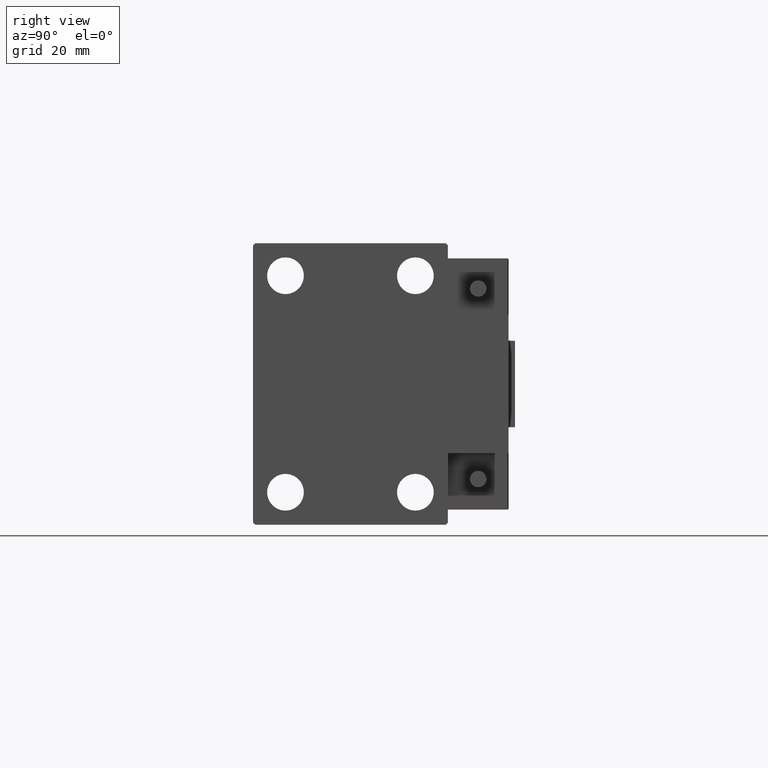
[diagram: clean part render]
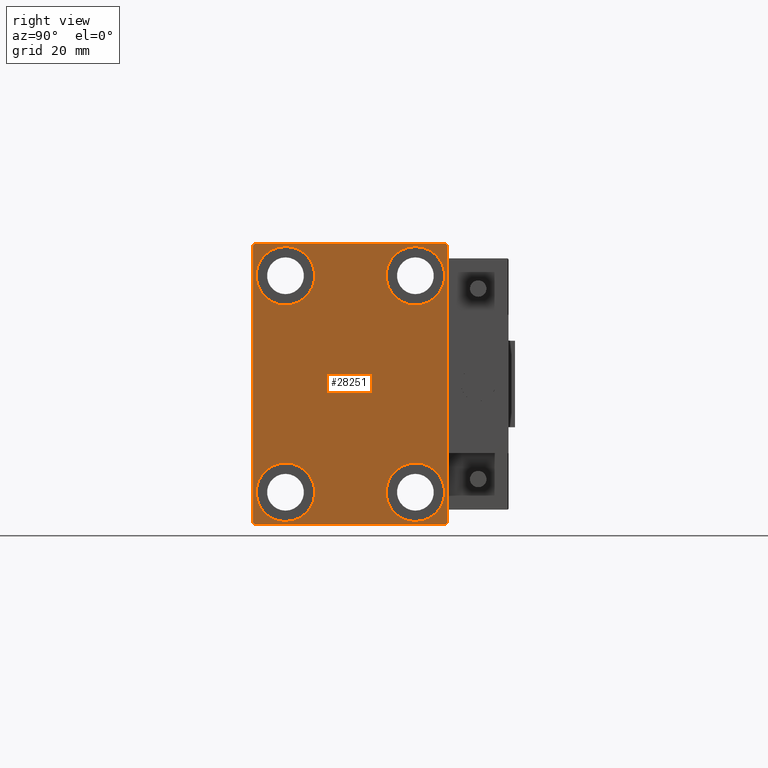
[diagram: same view with one face highlighted and labeled with its STEP entity id]
A machine part, right view. The second image highlights one B-rep face of the part: STEP entity #28251.
In plain terms, the highlighted planar face has unit normal (1, 0, 0).
Its self-contained STEP definition (entity closure, byte-faithful):
#287 = CARTESIAN_POINT ( 'NONE',  ( 70.00000000000000000, 14.99999999999999645, -18.25000000000000355 ) ) ;
#549 = EDGE_LOOP ( 'NONE', ( #13953, #28505, #42384, #42921, #36866, #13295, #45395, #9651 ) ) ;
#704 = CARTESIAN_POINT ( 'NONE',  ( 70.00000000000000000, 22.49999999999999289, 31.99999999999999289 ) ) ;
#861 = VECTOR ( 'NONE', #25754, 1000.000000000000000 ) ;
#1288 = ORIENTED_EDGE ( 'NONE', *, *, #1877, .T. ) ;
#1877 = EDGE_CURVE ( 'NONE', #3171, #17573, #22066, .T. ) ;
#2309 = ORIENTED_EDGE ( 'NONE', *, *, #14865, .T. ) ;
#2425 = DIRECTION ( 'NONE',  ( 0.000000000000000000, -1.000000000000000000, -1.541976423090495387E-16 ) ) ;
#2581 = DIRECTION ( 'NONE',  ( 0.000000000000000000, 0.000000000000000000, 1.000000000000000000 ) ) ;
#2743 = EDGE_CURVE ( 'NONE', #13294, #39529, #37813, .T. ) ;
#3171 = VERTEX_POINT ( 'NONE', #43037 ) ;
#3234 = ORIENTED_EDGE ( 'NONE', *, *, #28754, .T. ) ;
#5001 = EDGE_CURVE ( 'NONE', #10441, #23981, #8164, .T. ) ;
#5024 = EDGE_CURVE ( 'NONE', #49886, #34389, #45066, .T. ) ;
#5616 = DIRECTION ( 'NONE',  ( 0.000000000000000000, 0.000000000000000000, -1.000000000000000000 ) ) ;
#7177 = DIRECTION ( 'NONE',  ( 1.000000000000000000, 0.000000000000000000, 0.000000000000000000 ) ) ;
#7421 = FACE_BOUND ( 'NONE', #9993, .T. ) ;
#7881 = CARTESIAN_POINT ( 'NONE',  ( 70.00000000000000000, -15.00000000000000355, -25.00000000000000000 ) ) ;
#7916 = DIRECTION ( 'NONE',  ( 0.000000000000000000, 0.000000000000000000, -1.000000000000000000 ) ) ;
#8164 = CIRCLE ( 'NONE', #47159, 6.749999999999999112 ) ;
#8847 = AXIS2_PLACEMENT_3D ( 'NONE', #37991, #7177, #7916 ) ;
#9054 = VECTOR ( 'NONE', #40238, 1000.000000000000000 ) ;
#9240 = CARTESIAN_POINT ( 'NONE',  ( 70.00000000000000000, -15.00000000000000355, -31.75000000000000000 ) ) ;
#9631 = CARTESIAN_POINT ( 'NONE',  ( 70.00000000000000000, -22.50000000000000711, -32.50000000000000711 ) ) ;
#9651 = ORIENTED_EDGE ( 'NONE', *, *, #28896, .T. ) ;
#9993 = EDGE_LOOP ( 'NONE', ( #15526, #15160 ) ) ;
#10148 = AXIS2_PLACEMENT_3D ( 'NONE', #7881, #26989, #19108 ) ;
#10441 = VERTEX_POINT ( 'NONE', #14802 ) ;
#10825 = CARTESIAN_POINT ( 'NONE',  ( 70.00000000000000000, -14.99999999999999645, 31.75000000000000000 ) ) ;
#11805 = CARTESIAN_POINT ( 'NONE',  ( 70.00000000000000000, 14.99999999999999645, -25.00000000000000000 ) ) ;
#11924 = VERTEX_POINT ( 'NONE', #29906 ) ;
#12004 = DIRECTION ( 'NONE',  ( -1.000000000000000000, -0.000000000000000000, -0.000000000000000000 ) ) ;
#12386 = DIRECTION ( 'NONE',  ( 0.000000000000000000, 0.000000000000000000, 1.000000000000000000 ) ) ;
#13294 = VERTEX_POINT ( 'NONE', #49559 ) ;
#13295 = ORIENTED_EDGE ( 'NONE', *, *, #39082, .T. ) ;
#13442 = CARTESIAN_POINT ( 'NONE',  ( 70.00000000000000000, -22.50000000000000711, -32.00000000000000711 ) ) ;
#13953 = ORIENTED_EDGE ( 'NONE', *, *, #2743, .T. ) ;
#13973 = EDGE_LOOP ( 'NONE', ( #28180, #3234 ) ) ;
#14519 = VERTEX_POINT ( 'NONE', #9240 ) ;
#14596 = CARTESIAN_POINT ( 'NONE',  ( 70.00000000000000000, -15.00000000000000355, -25.00000000000000000 ) ) ;
#14802 = CARTESIAN_POINT ( 'NONE',  ( 70.00000000000000000, 15.00000000000000355, 18.25000000000000355 ) ) ;
#14865 = EDGE_CURVE ( 'NONE', #17573, #3171, #20609, .T. ) ;
#15160 = ORIENTED_EDGE ( 'NONE', *, *, #17419, .T. ) ;
#15212 = EDGE_CURVE ( 'NONE', #14519, #29630, #16645, .T. ) ;
#15512 = CIRCLE ( 'NONE', #39981, 6.749999999999999112 ) ;
#15526 = ORIENTED_EDGE ( 'NONE', *, *, #15212, .T. ) ;
#15586 = DIRECTION ( 'NONE',  ( 0.000000000000000000, 0.000000000000000000, 1.000000000000000000 ) ) ;
#15627 = DIRECTION ( 'NONE',  ( -1.000000000000000000, -0.000000000000000000, -0.000000000000000000 ) ) ;
#15749 = EDGE_LOOP ( 'NONE', ( #31566, #35513 ) ) ;
#15767 = DIRECTION ( 'NONE',  ( -0.000000000000000000, 0.7071067811865376918, 0.7071067811865573427 ) ) ;
#15900 = DIRECTION ( 'NONE',  ( 0.000000000000000000, 0.000000000000000000, 1.000000000000000000 ) ) ;
#16060 = CARTESIAN_POINT ( 'NONE',  ( 70.00000000000000000, -14.99999999999999645, 18.25000000000000355 ) ) ;
#16371 = EDGE_CURVE ( 'NONE', #19222, #49886, #37695, .T. ) ;
#16645 = CIRCLE ( 'NONE', #10148, 6.749999999999999112 ) ;
#17419 = EDGE_CURVE ( 'NONE', #29630, #14519, #18265, .T. ) ;
#17544 = DIRECTION ( 'NONE',  ( 0.000000000000000000, 1.000000000000000000, 0.000000000000000000 ) ) ;
#17573 = VERTEX_POINT ( 'NONE', #287 ) ;
#18265 = CIRCLE ( 'NONE', #19887, 6.749999999999999112 ) ;
#18871 = CARTESIAN_POINT ( 'NONE',  ( 70.00000000000000000, 15.00000000000000355, 25.00000000000000000 ) ) ;
#19108 = DIRECTION ( 'NONE',  ( 0.000000000000000000, 0.000000000000000000, 1.000000000000000000 ) ) ;
#19222 = VERTEX_POINT ( 'NONE', #29128 ) ;
#19326 = EDGE_LOOP ( 'NONE', ( #1288, #2309 ) ) ;
#19887 = AXIS2_PLACEMENT_3D ( 'NONE', #14596, #22736, #45604 ) ;
#20609 = CIRCLE ( 'NONE', #35244, 6.749999999999999112 ) ;
#22066 = CIRCLE ( 'NONE', #46384, 6.749999999999999112 ) ;
#22105 = CARTESIAN_POINT ( 'NONE',  ( 70.00000000000000000, -14.99999999999999645, 25.00000000000000000 ) ) ;
#22162 = CARTESIAN_POINT ( 'NONE',  ( 70.00000000000000000, -27.25000000000000000, 27.25000000000000000 ) ) ;
#22736 = DIRECTION ( 'NONE',  ( -1.000000000000000000, -0.000000000000000000, -0.000000000000000000 ) ) ;
#23232 = CARTESIAN_POINT ( 'NONE',  ( 70.00000000000000000, 14.99999999999999645, -25.00000000000000000 ) ) ;
#23785 = DIRECTION ( 'NONE',  ( -1.000000000000000000, -0.000000000000000000, -0.000000000000000000 ) ) ;
#23964 = LINE ( 'NONE', #36426, #9054 ) ;
#23981 = VERTEX_POINT ( 'NONE', #31109 ) ;
#24036 = CARTESIAN_POINT ( 'NONE',  ( 70.00000000000000000, 15.00000000000000355, 25.00000000000000000 ) ) ;
#24901 = CARTESIAN_POINT ( 'NONE',  ( 70.00000000000000000, -15.00000000000000355, -18.25000000000000355 ) ) ;
#24971 = CARTESIAN_POINT ( 'NONE',  ( 70.00000000000000000, -22.50000000000000711, 32.49999999999999289 ) ) ;
#25754 = DIRECTION ( 'NONE',  ( -0.000000000000000000, 0.7071067811865378028, -0.7071067811865573427 ) ) ;
#25852 = CARTESIAN_POINT ( 'NONE',  ( 70.00000000000000000, 22.49999999999999289, 32.50000000000000000 ) ) ;
#25909 = DIRECTION ( 'NONE',  ( 0.000000000000000000, 0.000000000000000000, 1.000000000000000000 ) ) ;
#26188 = LINE ( 'NONE', #9631, #37476 ) ;
#26536 = FACE_BOUND ( 'NONE', #13973, .T. ) ;
#26989 = DIRECTION ( 'NONE',  ( -1.000000000000000000, -0.000000000000000000, -0.000000000000000000 ) ) ;
#27277 = FACE_BOUND ( 'NONE', #15749, .T. ) ;
#27664 = EDGE_CURVE ( 'NONE', #39529, #19222, #30533, .T. ) ;
#28180 = ORIENTED_EDGE ( 'NONE', *, *, #40247, .T. ) ;
#28251 = ADVANCED_FACE ( 'NONE', ( #34415, #26536, #27277, #7421, #49673 ), #42050, .T. ) ;
#28267 = CIRCLE ( 'NONE', #34772, 6.749999999999999112 ) ;
#28334 = VERTEX_POINT ( 'NONE', #16060 ) ;
#28505 = ORIENTED_EDGE ( 'NONE', *, *, #27664, .T. ) ;
#28754 = EDGE_CURVE ( 'NONE', #42114, #28334, #28267, .T. ) ;
#28896 = EDGE_CURVE ( 'NONE', #36584, #13294, #34780, .T. ) ;
#29128 = CARTESIAN_POINT ( 'NONE',  ( 70.00000000000000000, -22.50000000000000711, 31.99999999999999289 ) ) ;
#29630 = VERTEX_POINT ( 'NONE', #24901 ) ;
#29906 = CARTESIAN_POINT ( 'NONE',  ( 70.00000000000000000, 22.50000000000000000, -32.00000000000002132 ) ) ;
#30533 = LINE ( 'NONE', #22162, #50305 ) ;
#30836 = VERTEX_POINT ( 'NONE', #43265 ) ;
#31109 = CARTESIAN_POINT ( 'NONE',  ( 70.00000000000000000, 15.00000000000000355, 31.75000000000000000 ) ) ;
#31456 = DIRECTION ( 'NONE',  ( -0.000000000000000000, -0.7071067811865425767, 0.7071067811865525687 ) ) ;
#31532 = VECTOR ( 'NONE', #31456, 999.9999999999998863 ) ;
#31566 = ORIENTED_EDGE ( 'NONE', *, *, #5001, .T. ) ;
#32284 = CARTESIAN_POINT ( 'NONE',  ( 70.00000000000000000, -22.00000000000002132, -32.50000000000000711 ) ) ;
#32539 = CIRCLE ( 'NONE', #34189, 6.749999999999999112 ) ;
#32648 = VECTOR ( 'NONE', #2425, 1000.000000000000000 ) ;
#33506 = CARTESIAN_POINT ( 'NONE',  ( 70.00000000000000000, -21.99999999999999289, 32.49999999999999289 ) ) ;
#33671 = VECTOR ( 'NONE', #5616, 1000.000000000000000 ) ;
#34189 = AXIS2_PLACEMENT_3D ( 'NONE', #24036, #23785, #15900 ) ;
#34389 = VERTEX_POINT ( 'NONE', #32284 ) ;
#34415 = FACE_BOUND ( 'NONE', #19326, .T. ) ;
#34600 = DIRECTION ( 'NONE',  ( 0.000000000000000000, -0.7071067811865474617, -0.7071067811865474617 ) ) ;
#34772 = AXIS2_PLACEMENT_3D ( 'NONE', #22105, #49551, #25909 ) ;
#34780 = LINE ( 'NONE', #42903, #31532 ) ;
#35244 = AXIS2_PLACEMENT_3D ( 'NONE', #23232, #12004, #15586 ) ;
#35513 = ORIENTED_EDGE ( 'NONE', *, *, #36020, .T. ) ;
#35801 = DIRECTION ( 'NONE',  ( -1.000000000000000000, -0.000000000000000000, -0.000000000000000000 ) ) ;
#36020 = EDGE_CURVE ( 'NONE', #23981, #10441, #32539, .T. ) ;
#36426 = CARTESIAN_POINT ( 'NONE',  ( 70.00000000000000000, 22.50000000000000000, -32.50000000000000711 ) ) ;
#36584 = VERTEX_POINT ( 'NONE', #704 ) ;
#36866 = ORIENTED_EDGE ( 'NONE', *, *, #40080, .T. ) ;
#37207 = CARTESIAN_POINT ( 'NONE',  ( 70.00000000000000000, -27.25000000000032330, -27.24999999999957012 ) ) ;
#37476 = VECTOR ( 'NONE', #17544, 1000.000000000000000 ) ;
#37695 = LINE ( 'NONE', #24971, #33671 ) ;
#37813 = LINE ( 'NONE', #25852, #32648 ) ;
#37991 = CARTESIAN_POINT ( 'NONE',  ( 70.00000000000000000, 0.000000000000000000, 0.000000000000000000 ) ) ;
#38853 = EDGE_CURVE ( 'NONE', #11924, #36584, #23964, .T. ) ;
#38933 = LINE ( 'NONE', #42753, #44849 ) ;
#39082 = EDGE_CURVE ( 'NONE', #30836, #11924, #38933, .T. ) ;
#39529 = VERTEX_POINT ( 'NONE', #33506 ) ;
#39981 = AXIS2_PLACEMENT_3D ( 'NONE', #47219, #35801, #12386 ) ;
#40080 = EDGE_CURVE ( 'NONE', #34389, #30836, #26188, .T. ) ;
#40238 = DIRECTION ( 'NONE',  ( 0.000000000000000000, -1.067522139062650425E-16, 1.000000000000000000 ) ) ;
#40247 = EDGE_CURVE ( 'NONE', #28334, #42114, #15512, .T. ) ;
#42050 = PLANE ( 'NONE',  #8847 ) ;
#42114 = VERTEX_POINT ( 'NONE', #10825 ) ;
#42263 = DIRECTION ( 'NONE',  ( -1.000000000000000000, -0.000000000000000000, -0.000000000000000000 ) ) ;
#42384 = ORIENTED_EDGE ( 'NONE', *, *, #16371, .T. ) ;
#42753 = CARTESIAN_POINT ( 'NONE',  ( 70.00000000000000000, 27.25000000000032685, -27.24999999999957012 ) ) ;
#42903 = CARTESIAN_POINT ( 'NONE',  ( 70.00000000000000000, 27.25000000000014921, 27.24999999999976907 ) ) ;
#42921 = ORIENTED_EDGE ( 'NONE', *, *, #5024, .T. ) ;
#43037 = CARTESIAN_POINT ( 'NONE',  ( 70.00000000000000000, 14.99999999999999645, -31.75000000000000000 ) ) ;
#43265 = CARTESIAN_POINT ( 'NONE',  ( 70.00000000000000000, 22.00000000000001421, -32.50000000000000711 ) ) ;
#44849 = VECTOR ( 'NONE', #15767, 1000.000000000000114 ) ;
#45066 = LINE ( 'NONE', #37207, #861 ) ;
#45395 = ORIENTED_EDGE ( 'NONE', *, *, #38853, .T. ) ;
#45604 = DIRECTION ( 'NONE',  ( 0.000000000000000000, 0.000000000000000000, 1.000000000000000000 ) ) ;
#46384 = AXIS2_PLACEMENT_3D ( 'NONE', #11805, #15627, #49988 ) ;
#47159 = AXIS2_PLACEMENT_3D ( 'NONE', #18871, #42263, #2581 ) ;
#47219 = CARTESIAN_POINT ( 'NONE',  ( 70.00000000000000000, -14.99999999999999645, 25.00000000000000000 ) ) ;
#49551 = DIRECTION ( 'NONE',  ( -1.000000000000000000, -0.000000000000000000, -0.000000000000000000 ) ) ;
#49559 = CARTESIAN_POINT ( 'NONE',  ( 70.00000000000000000, 21.99999999999999289, 32.50000000000000000 ) ) ;
#49673 = FACE_OUTER_BOUND ( 'NONE', #549, .T. ) ;
#49886 = VERTEX_POINT ( 'NONE', #13442 ) ;
#49988 = DIRECTION ( 'NONE',  ( 0.000000000000000000, 0.000000000000000000, 1.000000000000000000 ) ) ;
#50305 = VECTOR ( 'NONE', #34600, 1000.000000000000114 ) ;